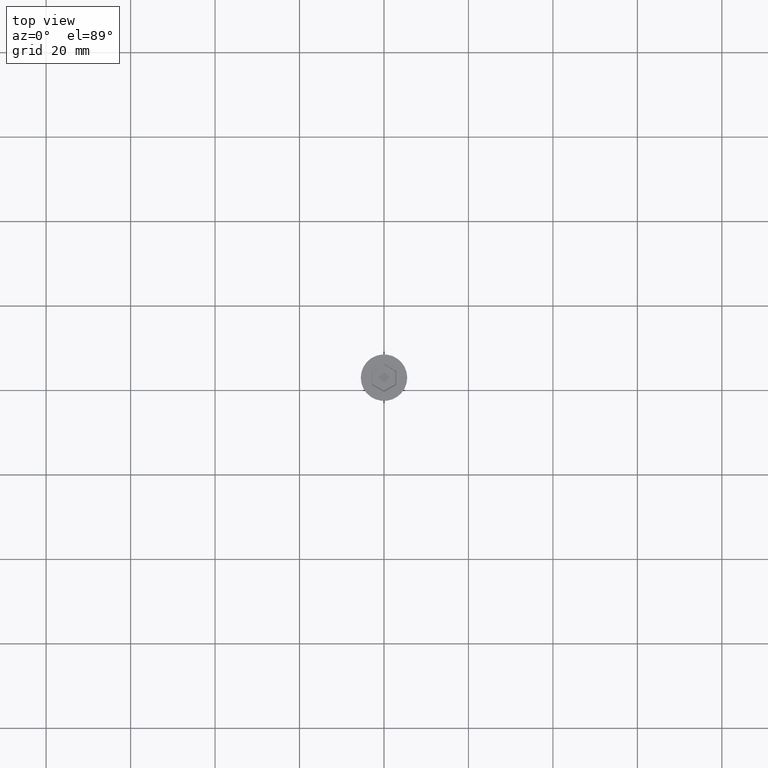
[diagram: clean part render]
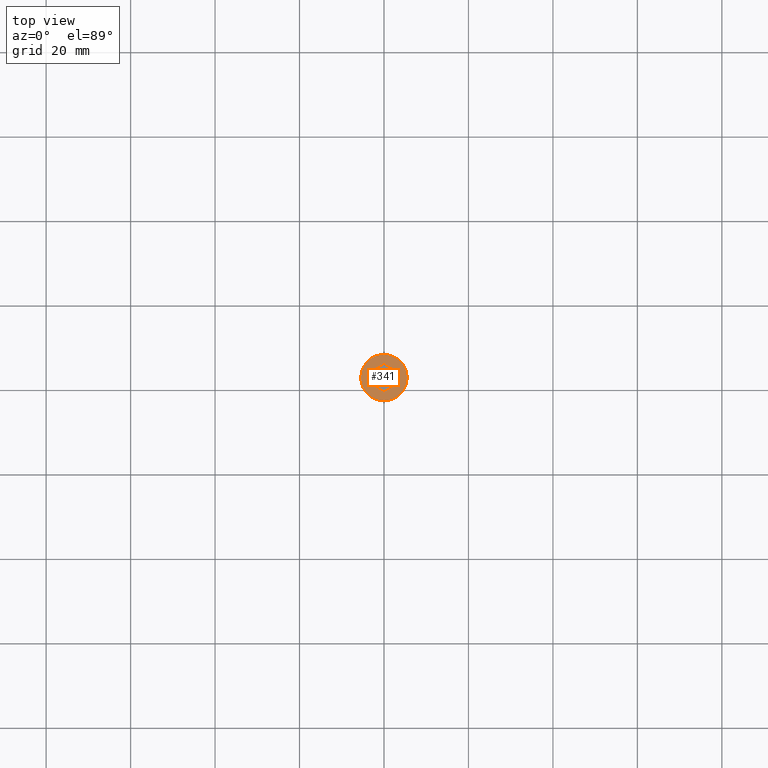
[diagram: same view with one face highlighted and labeled with its STEP entity id]
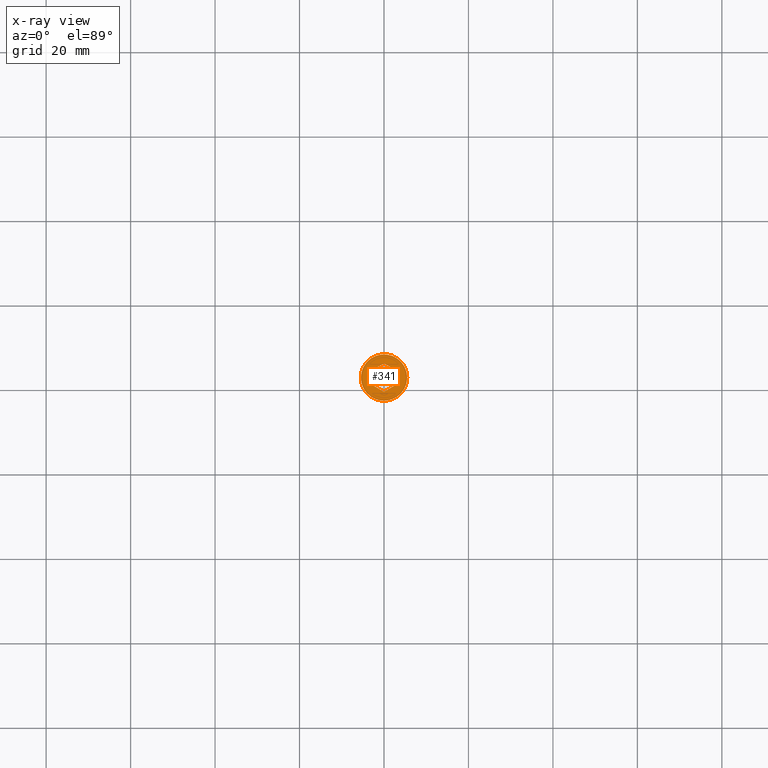
[diagram: x-ray of the same camera — body ghosted, the highlighted face saturated]
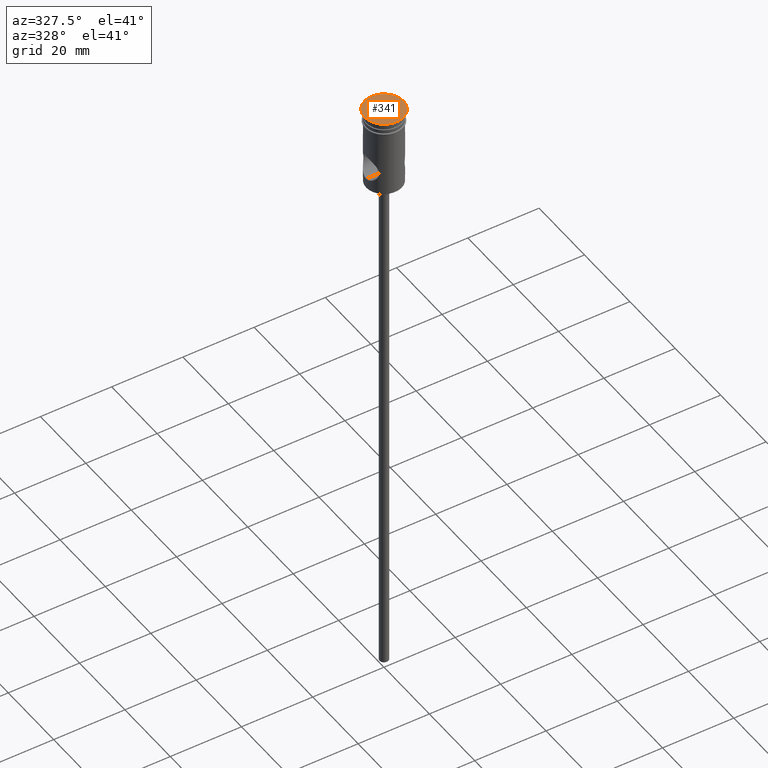
[diagram: same view with one face highlighted and labeled with its STEP entity id]
A machine part, top view. The second image highlights one B-rep face of the part: STEP entity #341.
The next image is the same camera in x-ray: the body ghosted, the highlighted face saturated — about 0% of this face is hidden behind the body in this view.
A second angle (auxiliary view) of the same face is appended — the face is thin or edge-on in the first view.
In plain terms, the highlighted planar face has unit normal (0, -0, 1).
Its self-contained STEP definition (entity closure, byte-faithful):
#25 = VECTOR ( 'NONE', #284, 1000.000000000000114 ) ;
#34 = ORIENTED_EDGE ( 'NONE', *, *, #607, .T. ) ;
#71 = LINE ( 'NONE', #292, #1021 ) ;
#85 = VERTEX_POINT ( 'NONE', #984 ) ;
#95 = ORIENTED_EDGE ( 'NONE', *, *, #1402, .T. ) ;
#99 = CIRCLE ( 'NONE', #911, 5.500000000000000000 ) ;
#114 = LINE ( 'NONE', #1400, #161 ) ;
#161 = VECTOR ( 'NONE', #353, 1000.000000000000000 ) ;
#172 = DIRECTION ( 'NONE',  ( 0.8660254037844387076, 0.4999999999999998890, 0.000000000000000000 ) ) ;
#177 = EDGE_LOOP ( 'NONE', ( #1288, #95 ) ) ;
#279 = ORIENTED_EDGE ( 'NONE', *, *, #1413, .T. ) ;
#283 = CARTESIAN_POINT ( 'NONE',  ( 0.000000000000000000, 0.000000000000000000, 0.000000000000000000 ) ) ;
#284 = DIRECTION ( 'NONE',  ( -0.8660254037844385966, 0.5000000000000001110, 0.000000000000000000 ) ) ;
#287 = CARTESIAN_POINT ( 'NONE',  ( 0.09999999999999654998, -3.290896534380861382, 0.000000000000000000 ) ) ;
#292 = CARTESIAN_POINT ( 'NONE',  ( -2.899999999999994138, 1.558845726811988852, 0.000000000000000000 ) ) ;
#295 = LINE ( 'NONE', #287, #1178 ) ;
#341 = ADVANCED_FACE ( 'NONE', ( #598, #931 ), #842, .T. ) ;
#353 = DIRECTION ( 'NONE',  ( -1.391032035867740017E-16, -1.000000000000000000, 0.000000000000000000 ) ) ;
#369 = ORIENTED_EDGE ( 'NONE', *, *, #1111, .T. ) ;
#380 = DIRECTION ( 'NONE',  ( 0.000000000000000000, -0.000000000000000000, 1.000000000000000000 ) ) ;
#400 = CARTESIAN_POINT ( 'NONE',  ( -0.09999999999999764633, 3.290896534380861382, 0.000000000000000000 ) ) ;
#401 = LINE ( 'NONE', #713, #25 ) ;
#405 = LINE ( 'NONE', #524, #1299 ) ;
#414 = AXIS2_PLACEMENT_3D ( 'NONE', #457, #1246, #1222 ) ;
#420 = EDGE_CURVE ( 'NONE', #1015, #535, #719, .T. ) ;
#457 = CARTESIAN_POINT ( 'NONE',  ( 0.000000000000000000, 0.000000000000000000, 0.000000000000000000 ) ) ;
#489 = DIRECTION ( 'NONE',  ( 1.000000000000000000, 0.000000000000000000, 0.000000000000000000 ) ) ;
#493 = VERTEX_POINT ( 'NONE', #1072 ) ;
#498 = CARTESIAN_POINT ( 'NONE',  ( -5.500000000000000000, 6.735557395310442023E-16, 0.000000000000000000 ) ) ;
#514 = EDGE_LOOP ( 'NONE', ( #369, #1330, #631, #1023, #34, #279 ) ) ;
#524 = CARTESIAN_POINT ( 'NONE',  ( 2.799999999999996270, 1.732050807568872086, 0.000000000000000000 ) ) ;
#535 = VERTEX_POINT ( 'NONE', #972 ) ;
#559 = CARTESIAN_POINT ( 'NONE',  ( -2.899999999999994138, -1.674315780649910934, 0.000000000000000000 ) ) ;
#572 = EDGE_CURVE ( 'NONE', #535, #493, #405, .T. ) ;
#598 = FACE_BOUND ( 'NONE', #514, .T. ) ;
#602 = DIRECTION ( 'NONE',  ( -0.000000000000000000, -0.000000000000000000, 1.000000000000000000 ) ) ;
#607 = EDGE_CURVE ( 'NONE', #493, #85, #114, .T. ) ;
#631 = ORIENTED_EDGE ( 'NONE', *, *, #420, .T. ) ;
#698 = EDGE_CURVE ( 'NONE', #834, #1405, #739, .T. ) ;
#713 = CARTESIAN_POINT ( 'NONE',  ( -2.799999999999997158, -1.732050807568871864, 0.000000000000000000 ) ) ;
#719 = LINE ( 'NONE', #400, #1373 ) ;
#739 = CIRCLE ( 'NONE', #414, 5.500000000000000000 ) ;
#820 = DIRECTION ( 'NONE',  ( 1.000000000000000000, 0.000000000000000000, 0.000000000000000000 ) ) ;
#834 = VERTEX_POINT ( 'NONE', #1268 ) ;
#842 = PLANE ( 'NONE',  #1297 ) ;
#843 = DIRECTION ( 'NONE',  ( -0.8660254037844387076, -0.4999999999999998890, 0.000000000000000000 ) ) ;
#847 = DIRECTION ( 'NONE',  ( 0.000000000000000000, 1.000000000000000000, 0.000000000000000000 ) ) ;
#901 = VERTEX_POINT ( 'NONE', #1406 ) ;
#911 = AXIS2_PLACEMENT_3D ( 'NONE', #283, #602, #489 ) ;
#922 = EDGE_CURVE ( 'NONE', #1237, #1015, #71, .T. ) ;
#931 = FACE_OUTER_BOUND ( 'NONE', #177, .T. ) ;
#972 = CARTESIAN_POINT ( 'NONE',  ( -9.683804684061200344E-16, 3.348631561299821868, 0.000000000000000000 ) ) ;
#984 = CARTESIAN_POINT ( 'NONE',  ( 2.899999999999992362, -1.674315780649911822, 0.000000000000000000 ) ) ;
#1015 = VERTEX_POINT ( 'NONE', #1418 ) ;
#1021 = VECTOR ( 'NONE', #847, 1000.000000000000000 ) ;
#1023 = ORIENTED_EDGE ( 'NONE', *, *, #572, .T. ) ;
#1072 = CARTESIAN_POINT ( 'NONE',  ( 2.899999999999992806, 1.674315780649911378, 0.000000000000000000 ) ) ;
#1111 = EDGE_CURVE ( 'NONE', #901, #1237, #401, .T. ) ;
#1178 = VECTOR ( 'NONE', #843, 1000.000000000000000 ) ;
#1195 = DIRECTION ( 'NONE',  ( 0.8660254037844387076, -0.4999999999999998335, 0.000000000000000000 ) ) ;
#1222 = DIRECTION ( 'NONE',  ( 1.000000000000000000, 0.000000000000000000, 0.000000000000000000 ) ) ;
#1237 = VERTEX_POINT ( 'NONE', #559 ) ;
#1246 = DIRECTION ( 'NONE',  ( -0.000000000000000000, -0.000000000000000000, 1.000000000000000000 ) ) ;
#1268 = CARTESIAN_POINT ( 'NONE',  ( 5.500000000000000000, 0.000000000000000000, 0.000000000000000000 ) ) ;
#1285 = CARTESIAN_POINT ( 'NONE',  ( 0.000000000000000000, 0.000000000000000000, 0.000000000000000000 ) ) ;
#1288 = ORIENTED_EDGE ( 'NONE', *, *, #698, .T. ) ;
#1297 = AXIS2_PLACEMENT_3D ( 'NONE', #1285, #380, #820 ) ;
#1299 = VECTOR ( 'NONE', #1195, 1000.000000000000000 ) ;
#1330 = ORIENTED_EDGE ( 'NONE', *, *, #922, .T. ) ;
#1373 = VECTOR ( 'NONE', #172, 1000.000000000000000 ) ;
#1400 = CARTESIAN_POINT ( 'NONE',  ( 2.899999999999992362, -1.558845726811989296, 0.000000000000000000 ) ) ;
#1402 = EDGE_CURVE ( 'NONE', #1405, #834, #99, .T. ) ;
#1405 = VERTEX_POINT ( 'NONE', #498 ) ;
#1406 = CARTESIAN_POINT ( 'NONE',  ( -4.552601062339046804E-16, -3.348631561299821868, 0.000000000000000000 ) ) ;
#1413 = EDGE_CURVE ( 'NONE', #85, #901, #295, .T. ) ;
#1418 = CARTESIAN_POINT ( 'NONE',  ( -2.899999999999994138, 1.674315780649911600, 0.000000000000000000 ) ) ;